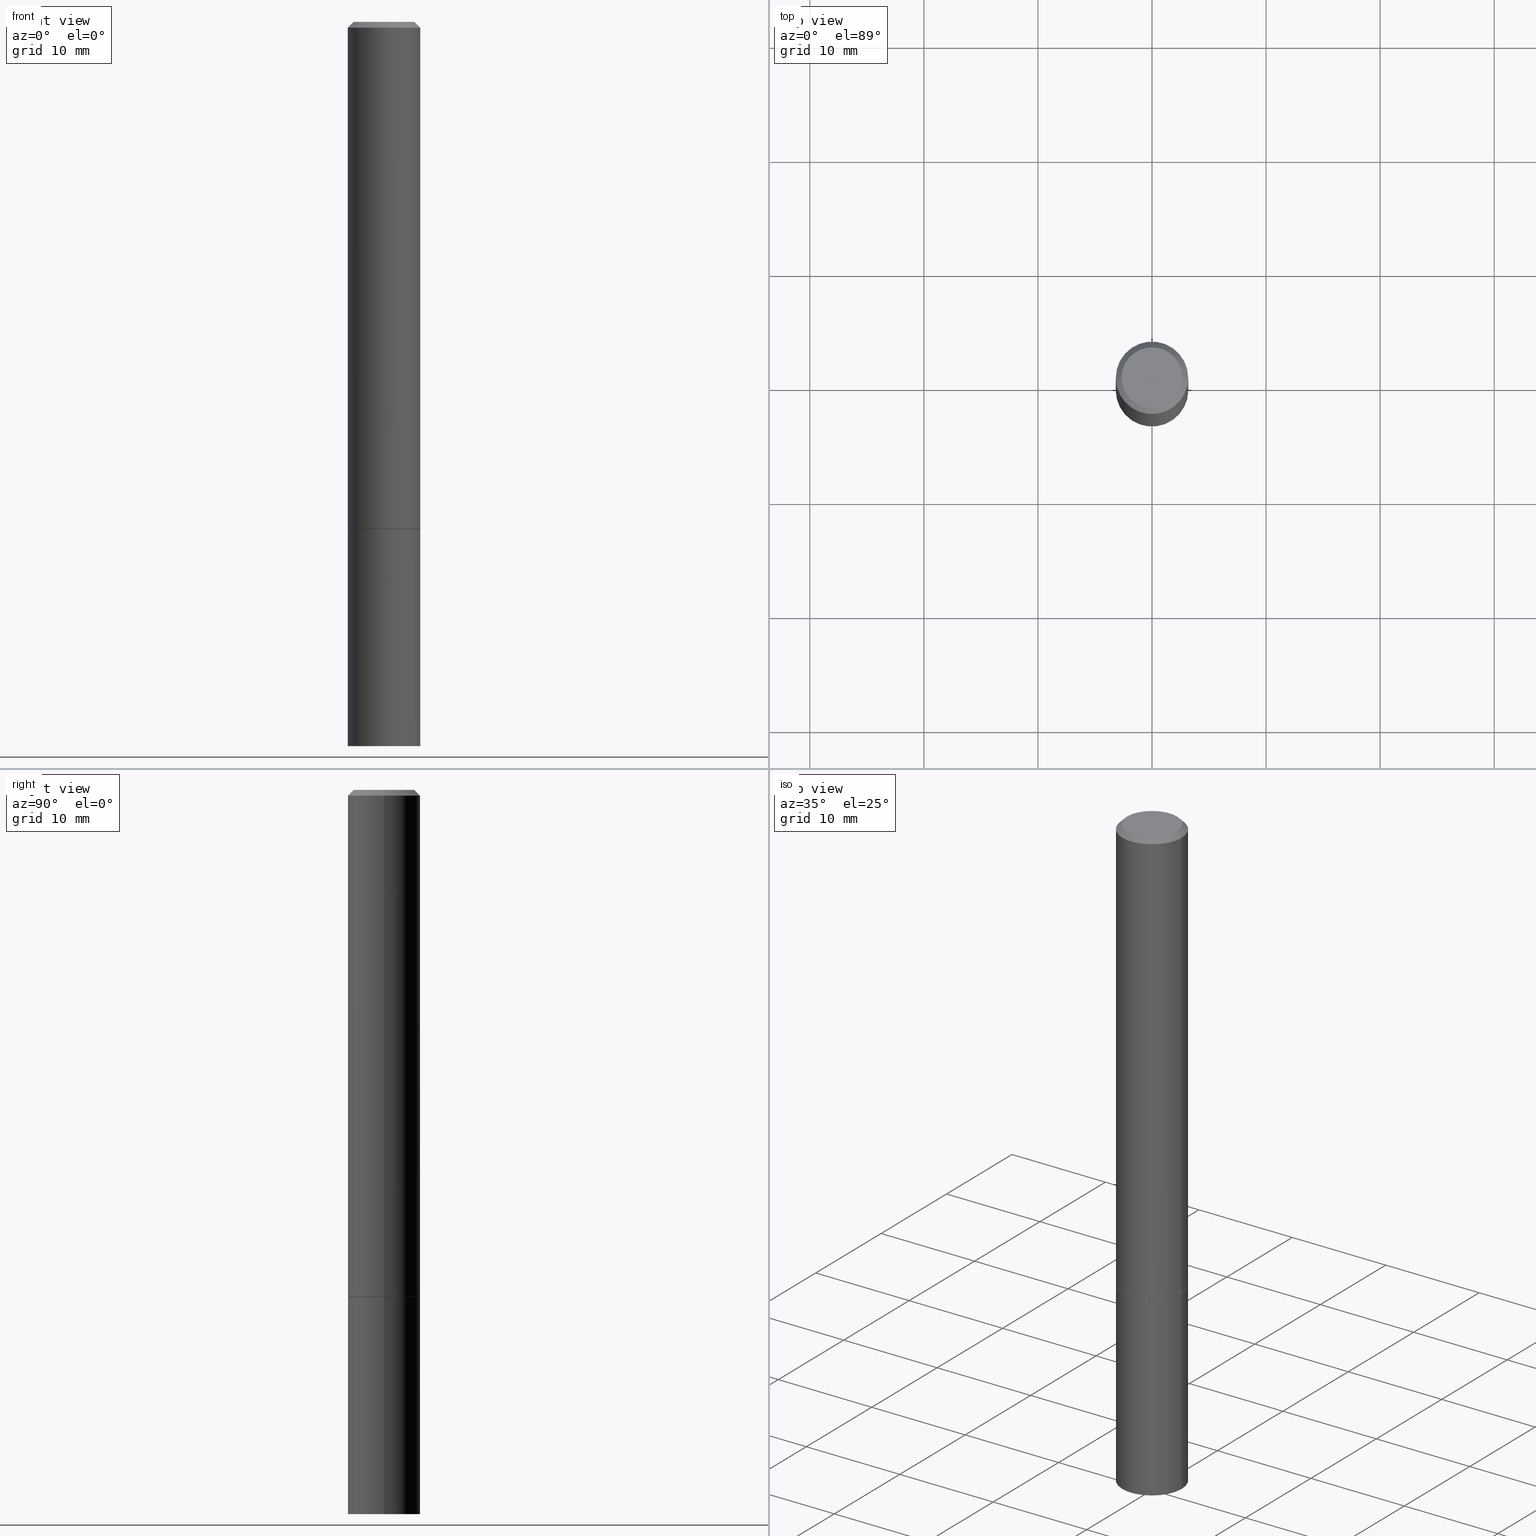
[diagram: canonical four-view strip — front | top / right | iso, engineering-drawing reading convention]
A machine part, canonical four-view strip (front | top / right | iso — engineering-drawing reading convention). The complete STEP part file that produces these views, byte-faithful:
ISO-10303-21;
HEADER;
FILE_DESCRIPTION (( 'STEP AP203' ),
    '1' );
FILE_NAME ('34662.STEP',
    '2024-02-27T16:36:17',
    ( '' ),
    ( '' ),
    'SwSTEP 2.0',
    'SolidWorks 2023',
    '' );
FILE_SCHEMA (( 'CONFIG_CONTROL_DESIGN' ));
ENDSEC;

DATA;
#1 = ORIENTED_EDGE ( 'NONE', *, *, #251, .T. ) ;
#2 = VERTEX_POINT ( 'NONE', #36 ) ;
#3 = VECTOR ( 'NONE', #269, 39.37007874015748854 ) ;
#4 = CARTESIAN_POINT ( 'NONE',  ( -0.1250000000000000000, 8.881784197001252323E-16, -6.148668862818632227E-30 ) ) ;
#5 = CARTESIAN_POINT ( 'NONE',  ( -0.1250000000000000000, -6.531219425341559180E-15, -2.500000000000000000 ) ) ;
#6 = VERTEX_POINT ( 'NONE', #129 ) ;
#7 = EDGE_CURVE ( 'NONE', #94, #28, #207, .T. ) ;
#8 = PERSON_AND_ORGANIZATION_ROLE ( 'classification_officer' ) ;
#9 = ORIENTED_EDGE ( 'NONE', *, *, #103, .T. ) ;
#10 = AXIS2_PLACEMENT_3D ( 'NONE', #185, #224, #231 ) ;
#11 = DIRECTION ( 'NONE',  ( 0.7071067811865466846, -7.319954787623252890E-15, -0.7071067811865483499 ) ) ;
#12 = PRODUCT_DEFINITION_SHAPE ( 'NONE', 'NONE',  #137 ) ;
#13 = DIRECTION ( 'NONE',  ( -2.445468806185136597E-29, 3.491481338843145583E-15, 1.000000000000000000 ) ) ;
#14 = CARTESIAN_POINT ( 'NONE',  ( 0.1250000000000000000, -6.979471196347445792E-15, -1.749000000000000110 ) ) ;
#15 = VECTOR ( 'NONE', #338, 39.37007874015748143 ) ;
#16 = CALENDAR_DATE ( 2024, 27, 2 ) ;
#17 = LENGTH_MEASURE_WITH_UNIT ( LENGTH_MEASURE( 0.02539999999999999897 ), #361 );
#18 = ADVANCED_FACE ( 'NONE', ( #122 ), #228, .F. ) ;
#19 = DIRECTION ( 'NONE',  ( -2.445468806185136597E-29, 3.491481338843145583E-15, 1.000000000000000000 ) ) ;
#20 = PERSON_AND_ORGANIZATION ( #144, #180 ) ;
#21 = ORIENTED_EDGE ( 'NONE', *, *, #54, .T. ) ;
#22 = VECTOR ( 'NONE', #360, 39.37007874015748854 ) ;
#23 = CC_DESIGN_APPROVAL ( #275, ( #80 ) ) ;
#24 = CARTESIAN_POINT ( 'NONE',  ( 6.113672015462842613E-29, -8.728703347107864943E-15, -2.500000000000000000 ) ) ;
#25 = APPROVAL_STATUS ( 'not_yet_approved' ) ;
#26 = ORIENTED_EDGE ( 'NONE', *, *, #84, .F. ) ;
#27 = CARTESIAN_POINT ( 'NONE',  ( 4.890937612370282792E-31, -6.982962677686303935E-17, -0.02000000000000003858 ) ) ;
#28 = VERTEX_POINT ( 'NONE', #313 ) ;
#29 = CARTESIAN_POINT ( 'NONE',  ( 8.728703347108260359E-16, 0.1249999999999938799, -1.750000000000000666 ) ) ;
#30 = ORIENTED_EDGE ( 'NONE', *, *, #140, .F. ) ;
#31 = AXIS2_PLACEMENT_3D ( 'NONE', #75, #97, #99 ) ;
#32 = CIRCLE ( 'NONE', #87, 0.1239999999999999991 ) ;
#33 = CC_DESIGN_DATE_AND_TIME_ASSIGNMENT ( #357, #107, ( #137 ) ) ;
#34 = ORIENTED_EDGE ( 'NONE', *, *, #284, .T. ) ;
#35 = ADVANCED_FACE ( 'NONE', ( #172 ), #125, .T. ) ;
#36 = CARTESIAN_POINT ( 'NONE',  ( 0.1250000000000000000, -9.601573681818648281E-15, -2.500000000000000000 ) ) ;
#37 = ADVANCED_FACE ( 'NONE', ( #98 ), #206, .T. ) ;
#38 = LINE ( 'NONE', #148, #86 ) ;
#39 = CIRCLE ( 'NONE', #237, 0.1250000000000000000 ) ;
#40 = CARTESIAN_POINT ( 'NONE',  ( -0.1049999999999997741, 7.681258945454874055E-16, 4.268512490095161194E-18 ) ) ;
#41 =( GEOMETRIC_REPRESENTATION_CONTEXT ( 3 ) GLOBAL_UNCERTAINTY_ASSIGNED_CONTEXT ( ( #353 ) ) GLOBAL_UNIT_ASSIGNED_CONTEXT ( ( #356, #279, #50 ) ) REPRESENTATION_CONTEXT ( 'NONE', 'WORKASPACE' ) );
#42 = DIRECTION ( 'NONE',  ( -1.000000000000000000, 6.982962677686265922E-15, -4.876176775795935793E-29 ) ) ;
#43 = DIRECTION ( 'NONE',  ( -2.445468806185136597E-29, 3.491481338843145583E-15, 1.000000000000000000 ) ) ;
#44 = CARTESIAN_POINT ( 'NONE',  ( 0.1239999999999999991, -6.975979715008602784E-15, -1.750000000000000222 ) ) ;
#45 = VECTOR ( 'NONE', #350, 39.37007874015748143 ) ;
#46 = LOCAL_TIME ( 11, 36, 17.00000000000000000, #305 ) ;
#47 = CARTESIAN_POINT ( 'NONE',  ( 0.1249999999999998751, -8.728703347107825500E-16, 6.095220969744913435E-30 ) ) ;
#48 = EDGE_CURVE ( 'NONE', #28, #310, #188, .T. ) ;
#49 = SHAPE_DEFINITION_REPRESENTATION ( #12, #306 ) ;
#50 =( NAMED_UNIT ( * ) SI_UNIT ( $, .STERADIAN. ) SOLID_ANGLE_UNIT ( ) );
#51 = PRODUCT ( '34662', '34662', '', ( #57 ) ) ;
#52 = CIRCLE ( 'NONE', #101, 0.1249999999999997641 ) ;
#53 = DIMENSIONAL_EXPONENTS ( 1.000000000000000000, 0.000000000000000000, 0.000000000000000000, 0.000000000000000000, 0.000000000000000000, 0.000000000000000000, 0.000000000000000000 ) ;
#54 = EDGE_CURVE ( 'NONE', #115, #151, #52, .T. ) ;
#55 = CALENDAR_DATE ( 2024, 27, 2 ) ;
#56 = DIRECTION ( 'NONE',  ( -2.445468806185136597E-29, 3.491481338843145583E-15, 1.000000000000000000 ) ) ;
#57 = MECHANICAL_CONTEXT ( 'NONE', #61, 'mechanical' ) ;
#58 = CARTESIAN_POINT ( 'NONE',  ( 4.279570410823989044E-29, -6.110092342975505460E-15, -1.750000000000000222 ) ) ;
#59 = VERTEX_POINT ( 'NONE', #40 ) ;
#60 = EDGE_LOOP ( 'NONE', ( #309, #288 ) ) ;
#61 = APPLICATION_CONTEXT ( 'configuration controlled 3d designs of mechanical parts and assemblies' ) ;
#62 = CARTESIAN_POINT ( 'NONE',  ( 4.279570410823989044E-29, -6.110092342975505460E-15, -1.750000000000000222 ) ) ;
#63 = ORIENTED_EDGE ( 'NONE', *, *, #103, .F. ) ;
#64 = CC_DESIGN_PERSON_AND_ORGANIZATION_ASSIGNMENT ( #239, #294, ( #137 ) ) ;
#65 = ORIENTED_EDGE ( 'NONE', *, *, #54, .F. ) ;
#66 = AXIS2_PLACEMENT_3D ( 'NONE', #351, #178, #159 ) ;
#67 = ORIENTED_EDGE ( 'NONE', *, *, #271, .F. ) ;
#68 = DIRECTION ( 'NONE',  ( 2.438088387897960049E-29, -3.491481338843145188E-15, -1.000000000000000000 ) ) ;
#69 = DIRECTION ( 'NONE',  ( -2.438088387897960049E-29, 3.491481338843145188E-15, 1.000000000000000000 ) ) ;
#70 = DIRECTION ( 'NONE',  ( -2.445468806185136597E-29, 3.491481338843145583E-15, 1.000000000000000000 ) ) ;
#71 = ADVANCED_FACE ( 'NONE', ( #259 ), #230, .T. ) ;
#72 = DIRECTION ( 'NONE',  ( 1.000000000000000000, -6.982962677686265922E-15, 4.876176775795935793E-29 ) ) ;
#73 = EDGE_CURVE ( 'NONE', #147, #6, #91, .T. ) ;
#74 = PERSON_AND_ORGANIZATION_ROLE ( 'creator' ) ;
#75 = CARTESIAN_POINT ( 'NONE',  ( 0.000000000000000000, 0.000000000000000000, 0.000000000000000000 ) ) ;
#76 = CC_DESIGN_PERSON_AND_ORGANIZATION_ASSIGNMENT ( #134, #74, ( #111 ) ) ;
#77 = DIRECTION ( 'NONE',  ( 2.445468806185136597E-29, -3.491481338843145583E-15, -1.000000000000000000 ) ) ;
#78 = DIRECTION ( 'NONE',  ( -0.7071067811865466846, 2.468850131082247989E-15, -0.7071067811865483499 ) ) ;
#79 = CLOSED_SHELL ( 'NONE', ( #82, #204, #124, #244, #35, #282, #18, #100 ) ) ;
#80 = SECURITY_CLASSIFICATION ( '', '', #152 ) ;
#81 = CYLINDRICAL_SURFACE ( 'NONE', #287, 0.1250000000000000000 ) ;
#82 = ADVANCED_FACE ( 'NONE', ( #171 ), #295, .T. ) ;
#83 = COORDINATED_UNIVERSAL_TIME_OFFSET ( 5, 0, .BEHIND. ) ;
#84 = EDGE_CURVE ( 'NONE', #2, #310, #38, .T. ) ;
#85 = CARTESIAN_POINT ( 'NONE',  ( 0.1249999999999997641, -9.273918764983027713E-16, -0.02000000000000003858 ) ) ;
#86 = VECTOR ( 'NONE', #150, 39.37007874015748143 ) ;
#87 = AXIS2_PLACEMENT_3D ( 'NONE', #58, #364, #170 ) ;
#88 = EDGE_LOOP ( 'NONE', ( #1, #90 ) ) ;
#89 = PLANE ( 'NONE',  #325 ) ;
#90 = ORIENTED_EDGE ( 'NONE', *, *, #48, .T. ) ;
#91 = CIRCLE ( 'NONE', #203, 0.1239999999999999991 ) ;
#92 = DIRECTION ( 'NONE',  ( 1.000000000000000000, -6.982962677686265922E-15, 4.876206205277404679E-29 ) ) ;
#93 = ORIENTED_EDGE ( 'NONE', *, *, #260, .T. ) ;
#94 = VERTEX_POINT ( 'NONE', #5 ) ;
#95 = EDGE_CURVE ( 'NONE', #337, #59, #179, .T. ) ;
#96 = DIRECTION ( 'NONE',  ( 1.000000000000000000, -6.982962677686266711E-15, 0.000000000000000000 ) ) ;
#97 = DIRECTION ( 'NONE',  ( -2.445468806185136597E-29, 3.491481338843145583E-15, 1.000000000000000000 ) ) ;
#98 = FACE_OUTER_BOUND ( 'NONE', #346, .T. ) ;
#99 = DIRECTION ( 'NONE',  ( 1.000000000000000000, -6.982962677686266711E-15, 4.876176775795935793E-29 ) ) ;
#100 = ADVANCED_FACE ( 'NONE', ( #327 ), #157, .F. ) ;
#101 = AXIS2_PLACEMENT_3D ( 'NONE', #347, #43, #96 ) ;
#102 = ORIENTED_EDGE ( 'NONE', *, *, #73, .F. ) ;
#103 = EDGE_CURVE ( 'NONE', #302, #151, #273, .T. ) ;
#104 = DIRECTION ( 'NONE',  ( 1.000000000000000000, -6.982962677686266711E-15, 4.876176775795935793E-29 ) ) ;
#105 = DIRECTION ( 'NONE',  ( -2.445468806185136597E-29, 3.491481338843145583E-15, 1.000000000000000000 ) ) ;
#106 = CARTESIAN_POINT ( 'NONE',  ( 4.890937612370282792E-31, -6.982962677686303935E-17, -0.02000000000000003858 ) ) ;
#107 = DATE_TIME_ROLE ( 'creation_date' ) ;
#108 = DATE_AND_TIME ( #349, #270 ) ;
#109 = DIRECTION ( 'NONE',  ( -1.000000000000000000, 6.982962677686266711E-15, 0.000000000000000000 ) ) ;
#110 = MANIFOLD_SOLID_BREP ( 'Body-Move/Copy2[2]', #79 ) ;
#111 = PRODUCT_DEFINITION_FORMATION_WITH_SPECIFIED_SOURCE ( 'ANY', '', #51, .NOT_KNOWN. ) ;
#112 = PERSON_AND_ORGANIZATION_ROLE ( 'design_owner' ) ;
#113 = ORIENTED_EDGE ( 'NONE', *, *, #140, .T. ) ;
#114 = EDGE_CURVE ( 'NONE', #94, #2, #167, .T. ) ;
#115 = VERTEX_POINT ( 'NONE', #85 ) ;
#116 = APPROVAL_ROLE ( '' ) ;
#117 = CARTESIAN_POINT ( 'NONE',  ( -0.1250000000000000000, -2.200036824506634488E-15, -1.749000000000000110 ) ) ;
#118 = ORIENTED_EDGE ( 'NONE', *, *, #7, .T. ) ;
#119 = AXIS2_PLACEMENT_3D ( 'NONE', #106, #77, #181 ) ;
#120 = ORIENTED_EDGE ( 'NONE', *, *, #114, .T. ) ;
#121 = EDGE_CURVE ( 'NONE', #200, #115, #323, .T. ) ;
#122 = FACE_OUTER_BOUND ( 'NONE', #202, .T. ) ;
#123 = CIRCLE ( 'NONE', #342, 0.1250000000000000000 ) ;
#124 = ADVANCED_FACE ( 'NONE', ( #158 ), #154, .T. ) ;
#125 = CYLINDRICAL_SURFACE ( 'NONE', #216, 0.1249999999999998751 ) ;
#126 = ORIENTED_EDGE ( 'NONE', *, *, #114, .F. ) ;
#127 = DIRECTION ( 'NONE',  ( 1.000000000000000000, -6.982962677686262766E-15, 0.000000000000000000 ) ) ;
#128 = COORDINATED_UNIVERSAL_TIME_OFFSET ( 5, 0, .BEHIND. ) ;
#129 = CARTESIAN_POINT ( 'NONE',  ( -0.1239999999999999991, -5.223720896284758045E-15, -1.750000000000000222 ) ) ;
#130 = FACE_OUTER_BOUND ( 'NONE', #232, .T. ) ;
#131 = DIRECTION ( 'NONE',  ( -2.445468806185136877E-29, 3.491481338843145188E-15, 1.000000000000000000 ) ) ;
#132 = CARTESIAN_POINT ( 'NONE',  ( 0.000000000000000000, 0.000000000000000000, 0.000000000000000000 ) ) ;
#133 = APPROVAL_DATE_TIME ( #241, #213 ) ;
#134 = PERSON_AND_ORGANIZATION ( #144, #180 ) ;
#135 = CARTESIAN_POINT ( 'NONE',  ( -0.1249999999999998751, 8.881784197001243449E-16, -6.148668862818626622E-30 ) ) ;
#136 = DIRECTION ( 'NONE',  ( -2.445468806185136597E-29, 3.491481338843145583E-15, 1.000000000000000000 ) ) ;
#137 = PRODUCT_DEFINITION ( 'UNKNOWN', '', #111, #240 ) ;
#138 = DIRECTION ( 'NONE',  ( 1.000000000000000000, -6.982962677686270655E-15, 0.000000000000000000 ) ) ;
#139 = ORIENTED_EDGE ( 'NONE', *, *, #343, .F. ) ;
#140 = EDGE_CURVE ( 'NONE', #59, #151, #214, .T. ) ;
#141 = COORDINATED_UNIVERSAL_TIME_OFFSET ( 5, 0, .BEHIND. ) ;
#142 = DATE_TIME_ROLE ( 'classification_date' ) ;
#143 = DIRECTION ( 'NONE',  ( 1.000000000000000000, -6.982962677686262766E-15, 0.000000000000000000 ) ) ;
#144 = PERSON ( 'UNSPECIFIED', 'UNSPECIFIED', 'UNSPECIFIED', ('UNSPECIFIED'), ('UNSPECIFIED'), ('UNSPECIFIED') ) ;
#145 = APPROVAL_PERSON_ORGANIZATION ( #215, #201, #189 ) ;
#146 = ORIENTED_EDGE ( 'NONE', *, *, #7, .F. ) ;
#147 = VERTEX_POINT ( 'NONE', #44 ) ;
#148 = CARTESIAN_POINT ( 'NONE',  ( 0.1250000000000000000, -8.728703347107833388E-16, 6.095220969744919741E-30 ) ) ;
#149 = AXIS2_PLACEMENT_3D ( 'NONE', #62, #56, #143 ) ;
#150 = DIRECTION ( 'NONE',  ( -2.445468806185136877E-29, 3.491481338843145188E-15, 1.000000000000000000 ) ) ;
#151 = VERTEX_POINT ( 'NONE', #267 ) ;
#152 = SECURITY_CLASSIFICATION_LEVEL ( 'unclassified' ) ;
#153 = DIRECTION ( 'NONE',  ( 2.438088387897960049E-29, -3.491481338843145188E-15, -1.000000000000000000 ) ) ;
#154 = CONICAL_SURFACE ( 'NONE', #119, 0.1249999999999997641, 0.7853981633974471688 ) ;
#155 = CARTESIAN_POINT ( 'NONE',  ( 0.1249999999999997641, -9.273918764983027713E-16, -0.02000000000000003858 ) ) ;
#156 = CC_DESIGN_APPROVAL ( #201, ( #111 ) ) ;
#157 = PLANE ( 'NONE',  #66 ) ;
#158 = FACE_OUTER_BOUND ( 'NONE', #177, .T. ) ;
#159 = DIRECTION ( 'NONE',  ( -1.000000000000000000, 6.982962677686265922E-15, -4.876176775795935793E-29 ) ) ;
#160 = CIRCLE ( 'NONE', #164, 0.1049999999999997741 ) ;
#161 = CALENDAR_DATE ( 2024, 27, 2 ) ;
#162 = DATE_AND_TIME ( #55, #46 ) ;
#163 = FACE_OUTER_BOUND ( 'NONE', #226, .T. ) ;
#164 = AXIS2_PLACEMENT_3D ( 'NONE', #336, #136, #92 ) ;
#165 = FACE_OUTER_BOUND ( 'NONE', #280, .T. ) ;
#166 = ORIENTED_EDGE ( 'NONE', *, *, #175, .F. ) ;
#167 = CIRCLE ( 'NONE', #264, 0.1250000000000000000 ) ;
#168 = CIRCLE ( 'NONE', #234, 0.1250000000000000000 ) ;
#169 = ORIENTED_EDGE ( 'NONE', *, *, #251, .F. ) ;
#170 = DIRECTION ( 'NONE',  ( 1.000000000000000000, -6.982962677686270655E-15, 0.000000000000000000 ) ) ;
#171 = FACE_OUTER_BOUND ( 'NONE', #247, .T. ) ;
#172 = FACE_OUTER_BOUND ( 'NONE', #257, .T. ) ;
#173 = AXIS2_PLACEMENT_3D ( 'NONE', #286, #263, #285 ) ;
#174 = DIRECTION ( 'NONE',  ( 1.000000000000000000, -6.982962677686267499E-15, 4.876176775795935793E-29 ) ) ;
#175 = EDGE_CURVE ( 'NONE', #147, #200, #296, .T. ) ;
#176 = DIRECTION ( 'NONE',  ( -2.445468806185136597E-29, 3.491481338843145583E-15, 1.000000000000000000 ) ) ;
#177 = EDGE_LOOP ( 'NONE', ( #281, #362, #21, #30 ) ) ;
#178 = DIRECTION ( 'NONE',  ( 2.438088387897960049E-29, -3.491481338843145188E-15, -1.000000000000000000 ) ) ;
#179 = CIRCLE ( 'NONE', #253, 0.1049999999999997741 ) ;
#180 = ORGANIZATION ( 'UNSPECIFIED', 'UNSPECIFIED', '' ) ;
#181 = DIRECTION ( 'NONE',  ( -1.000000000000000000, 6.982962677686266711E-15, 0.000000000000000000 ) ) ;
#182 = CIRCLE ( 'NONE', #10, 0.1249999999999997641 ) ;
#183 = DATE_AND_TIME ( #16, #312 ) ;
#184 = CYLINDRICAL_SURFACE ( 'NONE', #258, 0.1249999999999998751 ) ;
#185 = CARTESIAN_POINT ( 'NONE',  ( 4.890937612370282792E-31, -6.982962677686303935E-17, -0.02000000000000003858 ) ) ;
#186 = APPLICATION_CONTEXT ( 'configuration controlled 3d designs of mechanical parts and assemblies' ) ;
#187 = CARTESIAN_POINT ( 'NONE',  ( -0.1249999999999997641, 8.030407079339185615E-16, -0.02000000000000003858 ) ) ;
#188 = CIRCLE ( 'NONE', #303, 0.1250000000000000000 ) ;
#189 = APPROVAL_ROLE ( '' ) ;
#190 = APPROVAL_PERSON_ORGANIZATION ( #359, #275, #116 ) ;
#191 = DIRECTION ( 'NONE',  ( 1.000000000000000000, 0.000000000000000000, 0.000000000000000000 ) ) ;
#192 = ORIENTED_EDGE ( 'NONE', *, *, #73, .T. ) ;
#193 = APPROVAL_ROLE ( '' ) ;
#194 = ORIENTED_EDGE ( 'NONE', *, *, #343, .T. ) ;
#195 = AXIS2_PLACEMENT_3D ( 'NONE', #27, #250, #109 ) ;
#196 = EDGE_CURVE ( 'NONE', #337, #115, #292, .T. ) ;
#197 = DIRECTION ( 'NONE',  ( 1.000000000000000000, -6.982962677686270655E-15, 0.000000000000000000 ) ) ;
#198 = ADVANCED_FACE ( 'NONE', ( #130 ), #81, .T. ) ;
#199 = DIRECTION ( 'NONE',  ( -2.445468806185136597E-29, 3.491481338843145583E-15, 1.000000000000000000 ) ) ;
#200 = VERTEX_POINT ( 'NONE', #14 ) ;
#201 = APPROVAL ( #329, 'UNSPECIFIED' ) ;
#202 = EDGE_LOOP ( 'NONE', ( #102, #283 ) ) ;
#203 = AXIS2_PLACEMENT_3D ( 'NONE', #205, #315, #290 ) ;
#204 = ADVANCED_FACE ( 'NONE', ( #211 ), #184, .T. ) ;
#205 = CARTESIAN_POINT ( 'NONE',  ( 4.279570410823989044E-29, -6.110092342975505460E-15, -1.750000000000000222 ) ) ;
#206 = PLANE ( 'NONE',  #324 ) ;
#207 = LINE ( 'NONE', #4, #15 ) ;
#208 = ORIENTED_EDGE ( 'NONE', *, *, #284, .F. ) ;
#209 = DIRECTION ( 'NONE',  ( -2.445468806185136597E-29, 3.491481338843145583E-15, 1.000000000000000000 ) ) ;
#210 = AXIS2_PLACEMENT_3D ( 'NONE', #217, #331, #191 ) ;
#211 = FACE_OUTER_BOUND ( 'NONE', #249, .T. ) ;
#212 = DIRECTION ( 'NONE',  ( 1.000000000000000000, -6.982962677686267499E-15, 4.876176775795935793E-29 ) ) ;
#213 = APPROVAL ( #25, 'UNSPECIFIED' ) ;
#214 = LINE ( 'NONE', #187, #311 ) ;
#215 = PERSON_AND_ORGANIZATION ( #144, #180 ) ;
#216 = AXIS2_PLACEMENT_3D ( 'NONE', #344, #340, #174 ) ;
#217 = CARTESIAN_POINT ( 'NONE',  ( 0.000000000000000000, 0.000000000000000000, 0.000000000000000000 ) ) ;
#218 = CC_DESIGN_APPROVAL ( #213, ( #137 ) ) ;
#219 = FACE_OUTER_BOUND ( 'NONE', #88, .T. ) ;
#220 = APPLICATION_PROTOCOL_DEFINITION ( 'international standard', 'config_control_design', 1994, #186 ) ;
#221 = EDGE_LOOP ( 'NONE', ( #93, #118, #169, #26 ) ) ;
#222 = ORIENTED_EDGE ( 'NONE', *, *, #308, .T. ) ;
#223 = VECTOR ( 'NONE', #131, 39.37007874015748143 ) ;
#224 = DIRECTION ( 'NONE',  ( -2.445468806185136597E-29, 3.491481338843145583E-15, 1.000000000000000000 ) ) ;
#225 = DIRECTION ( 'NONE',  ( 1.000000000000000000, -6.982962677686270655E-15, 0.000000000000000000 ) ) ;
#226 = EDGE_LOOP ( 'NONE', ( #365, #67, #113, #194 ) ) ;
#227 = EDGE_CURVE ( 'NONE', #6, #302, #299, .T. ) ;
#228 = PLANE ( 'NONE',  #348 ) ;
#229 = CONICAL_SURFACE ( 'NONE', #278, 0.1239999999999999991, 0.7853981633974141952 ) ;
#230 = CYLINDRICAL_SURFACE ( 'NONE', #31, 0.1250000000000000000 ) ;
#231 = DIRECTION ( 'NONE',  ( 1.000000000000000000, -6.982962677686266711E-15, 0.000000000000000000 ) ) ;
#232 = EDGE_LOOP ( 'NONE', ( #146, #120, #256, #301 ) ) ;
#233 = CARTESIAN_POINT ( 'NONE',  ( 8.728703347108443769E-16, 0.1249999999999912709, -2.500000000000000444 ) ) ;
#234 = AXIS2_PLACEMENT_3D ( 'NONE', #248, #199, #138 ) ;
#235 = CC_DESIGN_PERSON_AND_ORGANIZATION_ASSIGNMENT ( #262, #8, ( #80 ) ) ;
#236 = DIRECTION ( 'NONE',  ( 1.000000000000000000, -6.982962677686265922E-15, 4.876206205277404679E-29 ) ) ;
#237 = AXIS2_PLACEMENT_3D ( 'NONE', #24, #332, #225 ) ;
#238 = CARTESIAN_POINT ( 'NONE',  ( 0.000000000000000000, 0.000000000000000000, 0.000000000000000000 ) ) ;
#239 = PERSON_AND_ORGANIZATION ( #144, #180 ) ;
#240 = DESIGN_CONTEXT ( 'detailed design', #186, 'design' ) ;
#241 = DATE_AND_TIME ( #246, #330 ) ;
#242 = CC_DESIGN_SECURITY_CLASSIFICATION ( #80, ( #111 ) ) ;
#243 = ORIENTED_EDGE ( 'NONE', *, *, #227, .F. ) ;
#244 = ADVANCED_FACE ( 'NONE', ( #163 ), #352, .T. ) ;
#245 = DIRECTION ( 'NONE',  ( 1.000000000000000000, -6.982962677686270655E-15, 0.000000000000000000 ) ) ;
#246 = CALENDAR_DATE ( 2024, 27, 2 ) ;
#247 = EDGE_LOOP ( 'NONE', ( #192, #334, #208, #166 ) ) ;
#248 = CARTESIAN_POINT ( 'NONE',  ( 4.277124942017804562E-29, -6.106600861636661664E-15, -1.749000000000000110 ) ) ;
#249 = EDGE_LOOP ( 'NONE', ( #34, #9, #65, #255 ) ) ;
#250 = DIRECTION ( 'NONE',  ( 2.445468806185136597E-29, -3.491481338843145583E-15, -1.000000000000000000 ) ) ;
#251 = EDGE_CURVE ( 'NONE', #310, #28, #318, .T. ) ;
#252 = ORIENTED_EDGE ( 'NONE', *, *, #314, .T. ) ;
#253 = AXIS2_PLACEMENT_3D ( 'NONE', #272, #355, #236 ) ;
#254 = CARTESIAN_POINT ( 'NONE',  ( 4.277124942017804562E-29, -6.106600861636661664E-15, -1.749000000000000110 ) ) ;
#255 = ORIENTED_EDGE ( 'NONE', *, *, #121, .F. ) ;
#256 = ORIENTED_EDGE ( 'NONE', *, *, #84, .T. ) ;
#257 = EDGE_LOOP ( 'NONE', ( #63, #252, #261, #139 ) ) ;
#258 = AXIS2_PLACEMENT_3D ( 'NONE', #132, #105, #212 ) ;
#259 = FACE_OUTER_BOUND ( 'NONE', #221, .T. ) ;
#260 = EDGE_CURVE ( 'NONE', #2, #94, #39, .T. ) ;
#261 = ORIENTED_EDGE ( 'NONE', *, *, #121, .T. ) ;
#262 = PERSON_AND_ORGANIZATION ( #144, #180 ) ;
#263 = DIRECTION ( 'NONE',  ( -2.445468806185136597E-29, 3.491481338843145583E-15, 1.000000000000000000 ) ) ;
#264 = AXIS2_PLACEMENT_3D ( 'NONE', #328, #209, #322 ) ;
#265 = APPROVAL_PERSON_ORGANIZATION ( #333, #213, #193 ) ;
#266 = PERSON_AND_ORGANIZATION ( #144, #180 ) ;
#267 = CARTESIAN_POINT ( 'NONE',  ( -0.1249999999999997641, 8.030407079339185615E-16, -0.02000000000000003858 ) ) ;
#268 = PRODUCT_RELATED_PRODUCT_CATEGORY ( 'detail', '', ( #51 ) ) ;
#269 = DIRECTION ( 'NONE',  ( 0.7071067811865232589, -2.468850131082003836E-15, 0.7071067811865715536 ) ) ;
#270 = LOCAL_TIME ( 11, 36, 17.00000000000000000, #128 ) ;
#271 = EDGE_CURVE ( 'NONE', #59, #337, #160, .T. ) ;
#272 = CARTESIAN_POINT ( 'NONE',  ( -1.043851414335219820E-46, 1.490343170380447200E-32, 4.268512490100411279E-18 ) ) ;
#273 = LINE ( 'NONE', #135, #45 ) ;
#274 = COORDINATED_UNIVERSAL_TIME_OFFSET ( 5, 0, .BEHIND. ) ;
#275 = APPROVAL ( #335, 'UNSPECIFIED' ) ;
#276 = ORIENTED_EDGE ( 'NONE', *, *, #175, .T. ) ;
#277 = CC_DESIGN_PERSON_AND_ORGANIZATION_ASSIGNMENT ( #20, #112, ( #51 ) ) ;
#278 = AXIS2_PLACEMENT_3D ( 'NONE', #358, #19, #245 ) ;
#279 =( NAMED_UNIT ( * ) PLANE_ANGLE_UNIT ( ) SI_UNIT ( $, .RADIAN. ) );
#280 = EDGE_LOOP ( 'NONE', ( #243, #222, #276, #366 ) ) ;
#281 = ORIENTED_EDGE ( 'NONE', *, *, #95, .F. ) ;
#282 = ADVANCED_FACE ( 'NONE', ( #165 ), #229, .T. ) ;
#283 = ORIENTED_EDGE ( 'NONE', *, *, #308, .F. ) ;
#284 = EDGE_CURVE ( 'NONE', #200, #302, #168, .T. ) ;
#285 = DIRECTION ( 'NONE',  ( 1.000000000000000000, -6.982962677686270655E-15, 0.000000000000000000 ) ) ;
#286 = CARTESIAN_POINT ( 'NONE',  ( 4.279570410823989044E-29, -6.110092342975505460E-15, -1.750000000000000222 ) ) ;
#287 = AXIS2_PLACEMENT_3D ( 'NONE', #238, #13, #104 ) ;
#288 = ORIENTED_EDGE ( 'NONE', *, *, #95, .T. ) ;
#289 = PERSON_AND_ORGANIZATION_ROLE ( 'design_supplier' ) ;
#290 = DIRECTION ( 'NONE',  ( 1.000000000000000000, -6.982962677686270655E-15, 0.000000000000000000 ) ) ;
#291 = DIRECTION ( 'NONE',  ( -1.000000000000000000, 6.982962677686265922E-15, -4.876176775795935793E-29 ) ) ;
#292 = LINE ( 'NONE', #155, #341 ) ;
#293 = CLOSED_SHELL ( 'NONE', ( #71, #37, #316, #198 ) ) ;
#294 = PERSON_AND_ORGANIZATION_ROLE ( 'creator' ) ;
#295 = CONICAL_SURFACE ( 'NONE', #173, 0.1239999999999999991, 0.7853981633974141952 ) ;
#296 = LINE ( 'NONE', #326, #3 ) ;
#297 = CARTESIAN_POINT ( 'NONE',  ( 0.1049999999999997741, -8.238720831321559881E-16, 4.268512490105855498E-18 ) ) ;
#298 = CC_DESIGN_PERSON_AND_ORGANIZATION_ASSIGNMENT ( #266, #289, ( #111 ) ) ;
#299 = LINE ( 'NONE', #304, #22 ) ;
#300 = APPLICATION_PROTOCOL_DEFINITION ( 'international standard', 'config_control_design', 1994, #61 ) ;
#301 = ORIENTED_EDGE ( 'NONE', *, *, #48, .F. ) ;
#302 = VERTEX_POINT ( 'NONE', #117 ) ;
#303 = AXIS2_PLACEMENT_3D ( 'NONE', #321, #70, #127 ) ;
#304 = CARTESIAN_POINT ( 'NONE',  ( -0.1239999999999999991, -5.229019350632981236E-15, -1.750000000000000222 ) ) ;
#305 = COORDINATED_UNIVERSAL_TIME_OFFSET ( 5, 0, .BEHIND. ) ;
#306 = ADVANCED_BREP_SHAPE_REPRESENTATION ( '34662', ( #363, #110, #210 ), #41 ) ;
#307 = ORIENTED_EDGE ( 'NONE', *, *, #260, .F. ) ;
#308 = EDGE_CURVE ( 'NONE', #6, #147, #32, .T. ) ;
#309 = ORIENTED_EDGE ( 'NONE', *, *, #271, .T. ) ;
#310 = VERTEX_POINT ( 'NONE', #345 ) ;
#311 = VECTOR ( 'NONE', #78, 39.37007874015748143 ) ;
#312 = LOCAL_TIME ( 11, 36, 17.00000000000000000, #274 ) ;
#313 = CARTESIAN_POINT ( 'NONE',  ( -0.1250000000000000000, -6.531219425341559180E-15, -1.750000000000000222 ) ) ;
#314 = EDGE_CURVE ( 'NONE', #302, #200, #123, .T. ) ;
#315 = DIRECTION ( 'NONE',  ( -2.445468806185136597E-29, 3.491481338843145583E-15, 1.000000000000000000 ) ) ;
#316 = ADVANCED_FACE ( 'NONE', ( #219 ), #89, .F. ) ;
#317 = CARTESIAN_POINT ( 'NONE',  ( 4.279570410823989044E-29, -6.110092342975505460E-15, -1.750000000000000222 ) ) ;
#318 = CIRCLE ( 'NONE', #149, 0.1250000000000000000 ) ;
#319 = LOCAL_TIME ( 11, 36, 17.00000000000000000, #83 ) ;
#320 = APPROVAL_DATE_TIME ( #183, #201 ) ;
#321 = CARTESIAN_POINT ( 'NONE',  ( 4.279570410823989044E-29, -6.110092342975505460E-15, -1.750000000000000222 ) ) ;
#322 = DIRECTION ( 'NONE',  ( 1.000000000000000000, -6.982962677686270655E-15, 0.000000000000000000 ) ) ;
#323 = LINE ( 'NONE', #47, #223 ) ;
#324 = AXIS2_PLACEMENT_3D ( 'NONE', #233, #153, #42 ) ;
#325 = AXIS2_PLACEMENT_3D ( 'NONE', #29, #68, #291 ) ;
#326 = CARTESIAN_POINT ( 'NONE',  ( 0.1239999999999999991, -6.975979715008602784E-15, -1.750000000000000222 ) ) ;
#327 = FACE_OUTER_BOUND ( 'NONE', #60, .T. ) ;
#328 = CARTESIAN_POINT ( 'NONE',  ( 6.113672015462842613E-29, -8.728703347107864943E-15, -2.500000000000000000 ) ) ;
#329 = APPROVAL_STATUS ( 'not_yet_approved' ) ;
#330 = LOCAL_TIME ( 11, 36, 17.00000000000000000, #141 ) ;
#331 = DIRECTION ( 'NONE',  ( 0.000000000000000000, 0.000000000000000000, 1.000000000000000000 ) ) ;
#332 = DIRECTION ( 'NONE',  ( -2.445468806185136597E-29, 3.491481338843145583E-15, 1.000000000000000000 ) ) ;
#333 = PERSON_AND_ORGANIZATION ( #144, #180 ) ;
#334 = ORIENTED_EDGE ( 'NONE', *, *, #227, .T. ) ;
#335 = APPROVAL_STATUS ( 'not_yet_approved' ) ;
#336 = CARTESIAN_POINT ( 'NONE',  ( -1.043851414335219820E-46, 1.490343170380447200E-32, 4.268512490100411279E-18 ) ) ;
#337 = VERTEX_POINT ( 'NONE', #297 ) ;
#338 = DIRECTION ( 'NONE',  ( -2.445468806185136877E-29, 3.491481338843145188E-15, 1.000000000000000000 ) ) ;
#339 = CC_DESIGN_DATE_AND_TIME_ASSIGNMENT ( #108, #142, ( #80 ) ) ;
#340 = DIRECTION ( 'NONE',  ( -2.445468806185136597E-29, 3.491481338843145583E-15, 1.000000000000000000 ) ) ;
#341 = VECTOR ( 'NONE', #11, 39.37007874015748143 ) ;
#342 = AXIS2_PLACEMENT_3D ( 'NONE', #254, #176, #197 ) ;
#343 = EDGE_CURVE ( 'NONE', #151, #115, #182, .T. ) ;
#344 = CARTESIAN_POINT ( 'NONE',  ( 0.000000000000000000, 0.000000000000000000, 0.000000000000000000 ) ) ;
#345 = CARTESIAN_POINT ( 'NONE',  ( 0.1250000000000000000, -6.982962677686288010E-15, -1.750000000000000222 ) ) ;
#346 = EDGE_LOOP ( 'NONE', ( #307, #126 ) ) ;
#347 = CARTESIAN_POINT ( 'NONE',  ( 4.890937612370282792E-31, -6.982962677686303935E-17, -0.02000000000000003858 ) ) ;
#348 = AXIS2_PLACEMENT_3D ( 'NONE', #317, #69, #72 ) ;
#349 = CALENDAR_DATE ( 2024, 27, 2 ) ;
#350 = DIRECTION ( 'NONE',  ( -2.445468806185136877E-29, 3.491481338843145188E-15, 1.000000000000000000 ) ) ;
#351 = CARTESIAN_POINT ( 'NONE',  ( 7.332110811570563480E-16, 0.1049999999999997741, -3.644712843334792919E-16 ) ) ;
#352 = CONICAL_SURFACE ( 'NONE', #195, 0.1249999999999997641, 0.7853981633974471688 ) ;
#353 = UNCERTAINTY_MEASURE_WITH_UNIT (LENGTH_MEASURE( 1.000000000000000082E-05 ), #356, 'distance_accuracy_value', 'NONE');
#354 = APPROVAL_DATE_TIME ( #162, #275 ) ;
#355 = DIRECTION ( 'NONE',  ( -2.445468806185136597E-29, 3.491481338843145583E-15, 1.000000000000000000 ) ) ;
#356 =( CONVERSION_BASED_UNIT ( 'INCH', #17 ) LENGTH_UNIT ( ) NAMED_UNIT ( #53 ) );
#357 = DATE_AND_TIME ( #161, #319 ) ;
#358 = CARTESIAN_POINT ( 'NONE',  ( 4.279570410823989044E-29, -6.110092342975505460E-15, -1.750000000000000222 ) ) ;
#359 = PERSON_AND_ORGANIZATION ( #144, #180 ) ;
#360 = DIRECTION ( 'NONE',  ( -0.7071067811865232589, 7.493145998870265808E-15, 0.7071067811865715536 ) ) ;
#361 =( LENGTH_UNIT ( ) NAMED_UNIT ( * ) SI_UNIT ( $, .METRE. ) );
#362 = ORIENTED_EDGE ( 'NONE', *, *, #196, .T. ) ;
#363 = MANIFOLD_SOLID_BREP ( 'Body-Move/Copy2[1]', #293 ) ;
#364 = DIRECTION ( 'NONE',  ( -2.445468806185136597E-29, 3.491481338843145583E-15, 1.000000000000000000 ) ) ;
#365 = ORIENTED_EDGE ( 'NONE', *, *, #196, .F. ) ;
#366 = ORIENTED_EDGE ( 'NONE', *, *, #314, .F. ) ;
ENDSEC;
END-ISO-10303-21;
